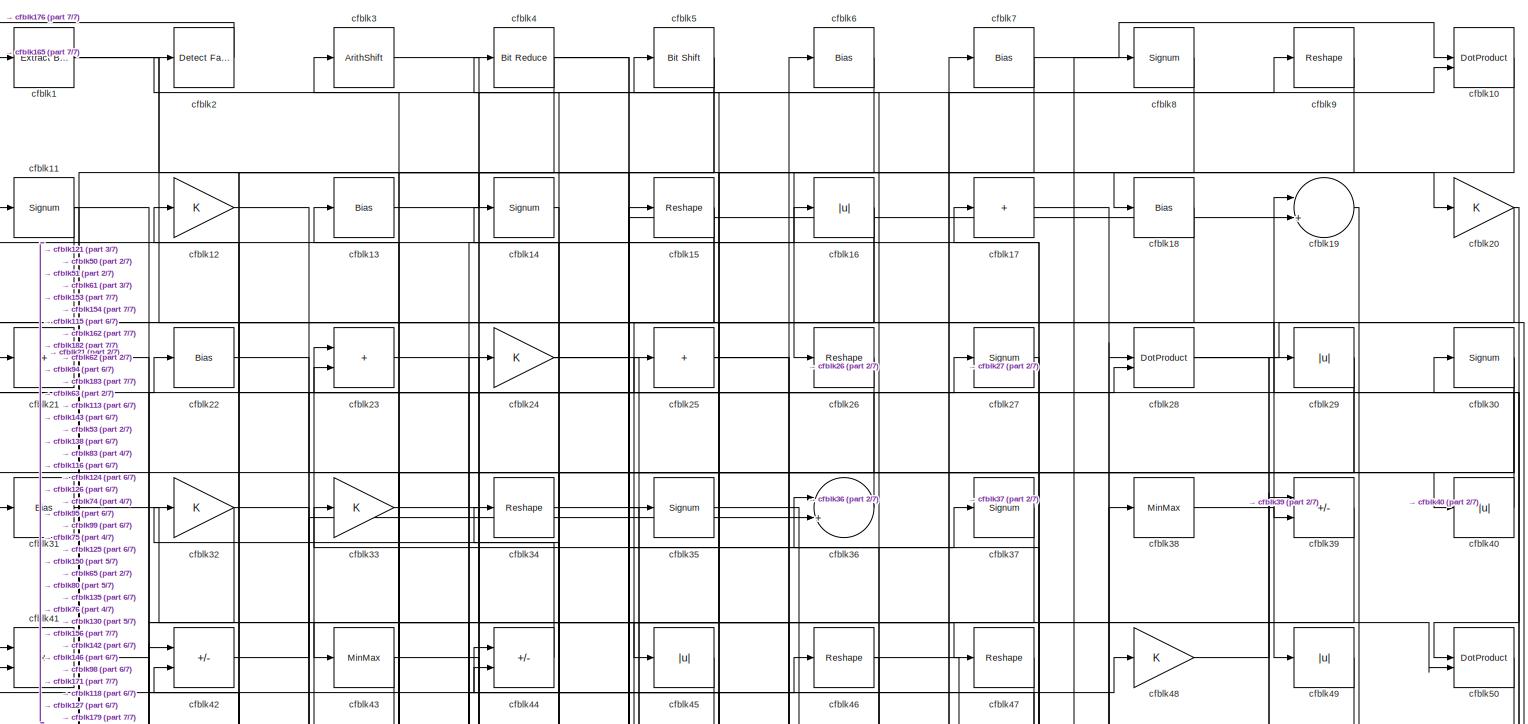
[diagram: root canvas - part 1/7, full width, top band]
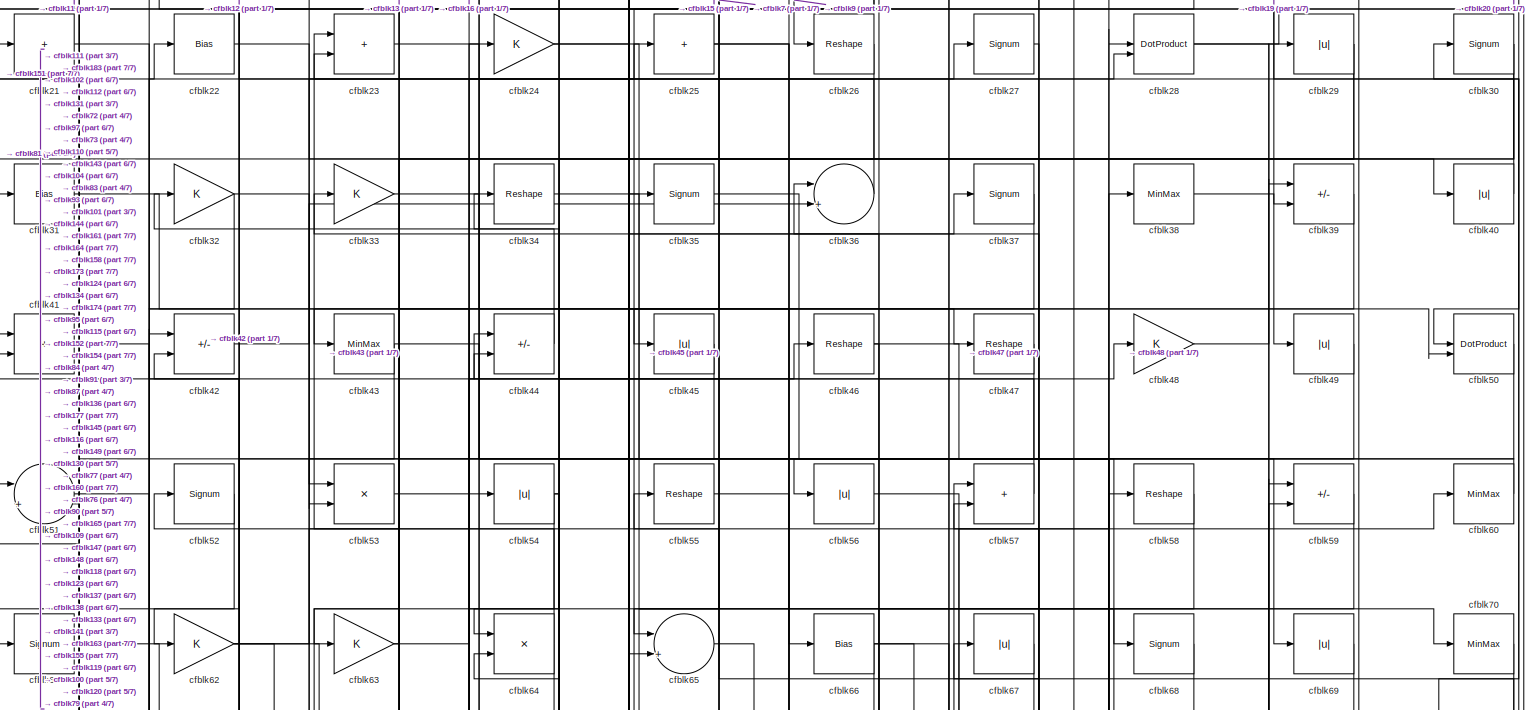
[diagram: root canvas - part 2/7, full width, top band]
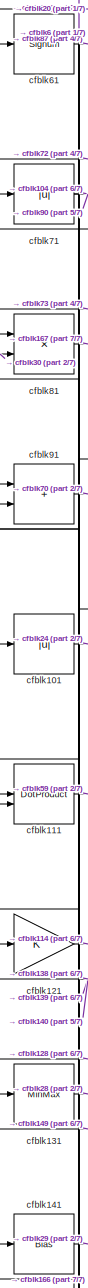
[diagram: root canvas - part 3/7, middle left region]
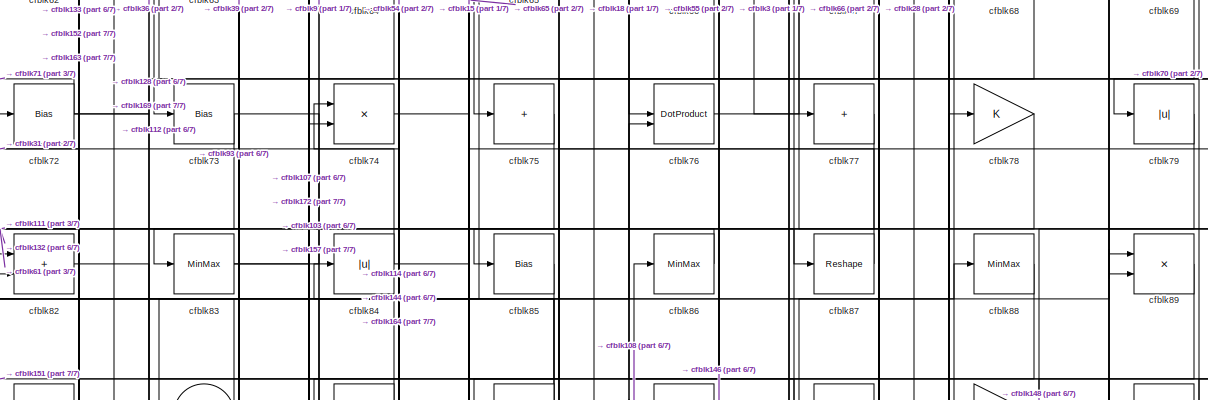
[diagram: root canvas - part 4/7, full width, middle band]
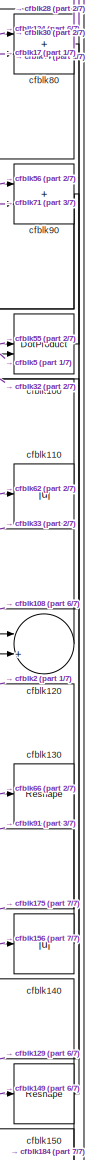
[diagram: root canvas - part 5/7, middle right region]
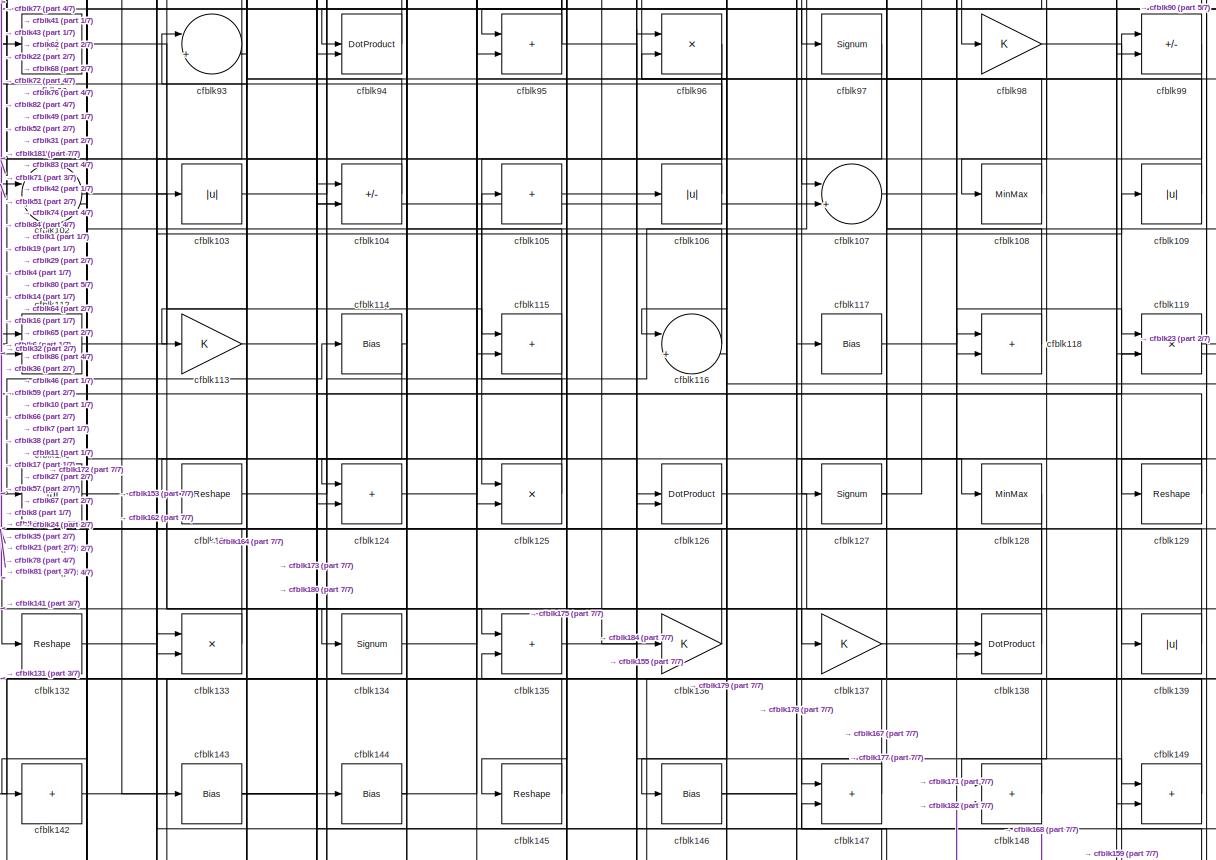
[diagram: root canvas - part 6/7, full width, middle band]
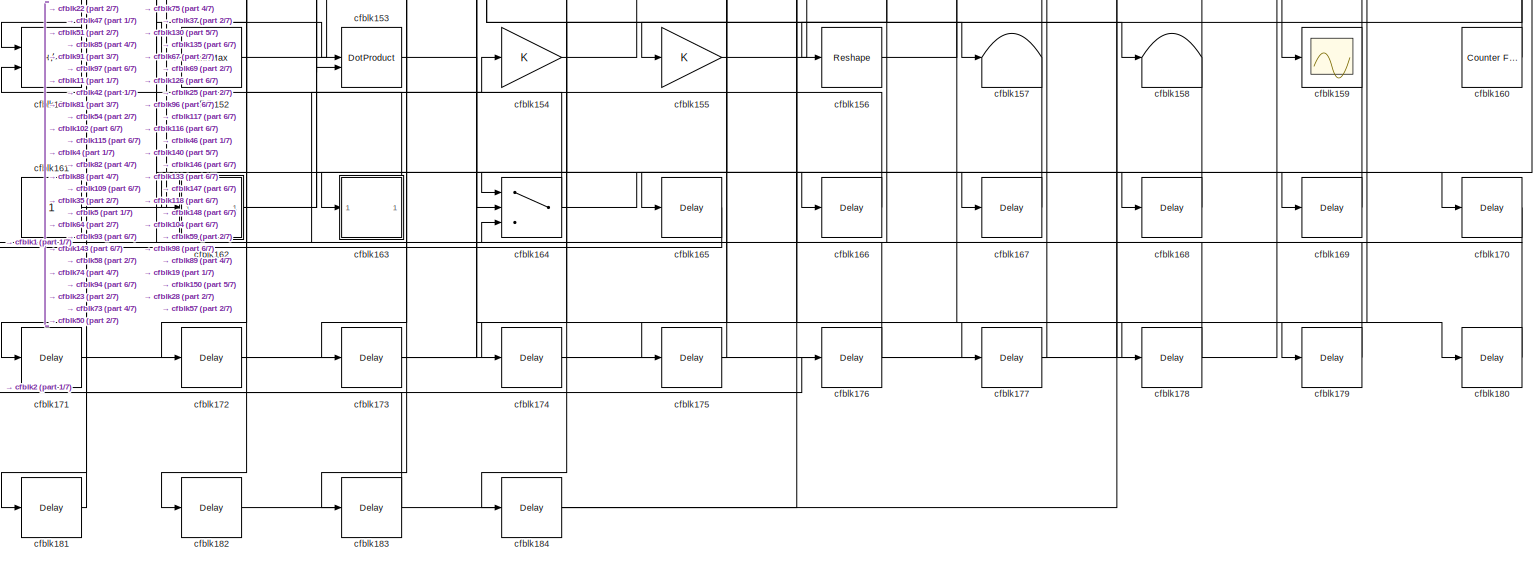
[diagram: root canvas - part 7/7, full width, bottom band]
MODEL slx_677499b3322e
KIND model
CONFIG AbsTol = auto
CONFIG EnableMultiTasking = off
CONFIG FixedStep = auto
CONFIG MaxStep = auto
CONFIG MinStep = auto
CONFIG RelTol = 1e-3
CONFIG SampleTimeConstraint = Unconstrained
CONFIG SolverName = VariableStepAuto
CONFIG StartTime = 0.0
CONFIG StopTime = 10.0
BLOCK [Reference] cfblk1  REF=simulink/Logic and Bit
Operations/Extract Bits
  LibrarySourceBlock = hdlsllib/Logic and Bit\nOperations/Extract Bits
  SourceBlock = simulink/Logic and Bit\nOperations/Extract Bits
  SourceType = Extract Bits
BLOCK [DotProduct] cfblk10
  OutDataTypeStr = Inherit: Inherit via internal rule
BLOCK [DotProduct] cfblk100
  OutDataTypeStr = Inherit: Inherit via internal rule
BLOCK [Abs] cfblk101
  SaturateOnIntegerOverflow = off
BLOCK [Sum] cfblk102
  Inputs = |++
BLOCK [Abs] cfblk103
  SaturateOnIntegerOverflow = off
BLOCK [Sum] cfblk104
  IconShape = rectangular
  Inputs = +-
BLOCK [Sum] cfblk105
  IconShape = rectangular
  Inputs = +
BLOCK [Abs] cfblk106
  SaturateOnIntegerOverflow = off
BLOCK [Sum] cfblk107
  Inputs = |++
BLOCK [MinMax] cfblk108
BLOCK [Abs] cfblk109
  SaturateOnIntegerOverflow = off
BLOCK [Signum] cfblk11
BLOCK [Abs] cfblk110
  SaturateOnIntegerOverflow = off
BLOCK [DotProduct] cfblk111
  OutDataTypeStr = Inherit: Inherit via internal rule
BLOCK [Sum] cfblk112
  IconShape = rectangular
BLOCK [Gain] cfblk113
BLOCK [Bias] cfblk114
  Bias = 0.0
  SaturateOnIntegerOverflow = off
BLOCK [Sum] cfblk115
  IconShape = rectangular
BLOCK [Sum] cfblk116
  Inputs = |++
BLOCK [Bias] cfblk117
  Bias = 0.0
  SaturateOnIntegerOverflow = off
BLOCK [Sum] cfblk118
  IconShape = rectangular
BLOCK [Product] cfblk119
  Inputs = */
  RndMeth = Zero
  SaturateOnIntegerOverflow = on
BLOCK [Gain] cfblk12
BLOCK [Sum] cfblk120
  Inputs = |++
BLOCK [Gain] cfblk121
BLOCK [Abs] cfblk122
  SaturateOnIntegerOverflow = off
BLOCK [Reshape] cfblk123
BLOCK [Sum] cfblk124
  IconShape = rectangular
BLOCK [Product] cfblk125
  Inputs = */
  RndMeth = Zero
  SaturateOnIntegerOverflow = on
BLOCK [DotProduct] cfblk126
  OutDataTypeStr = Inherit: Inherit via internal rule
BLOCK [Signum] cfblk127
BLOCK [MinMax] cfblk128
BLOCK [Reshape] cfblk129
BLOCK [Bias] cfblk13
  Bias = 0.0
  SaturateOnIntegerOverflow = off
BLOCK [Reshape] cfblk130
BLOCK [MinMax] cfblk131
BLOCK [Reshape] cfblk132
BLOCK [Product] cfblk133
  Inputs = */
  RndMeth = Zero
  SaturateOnIntegerOverflow = on
BLOCK [Signum] cfblk134
BLOCK [Sum] cfblk135
  IconShape = rectangular
BLOCK [Gain] cfblk136
BLOCK [Gain] cfblk137
BLOCK [DotProduct] cfblk138
  OutDataTypeStr = Inherit: Inherit via internal rule
BLOCK [Abs] cfblk139
  SaturateOnIntegerOverflow = off
BLOCK [Signum] cfblk14
BLOCK [Abs] cfblk140
  SaturateOnIntegerOverflow = off
BLOCK [Bias] cfblk141
  Bias = 0.0
  SaturateOnIntegerOverflow = off
BLOCK [Sum] cfblk142
  IconShape = rectangular
  Inputs = +
BLOCK [Bias] cfblk143
  Bias = 0.0
  SaturateOnIntegerOverflow = off
BLOCK [Bias] cfblk144
  Bias = 0.0
  SaturateOnIntegerOverflow = off
BLOCK [Reshape] cfblk145
BLOCK [Bias] cfblk146
  Bias = 0.0
  SaturateOnIntegerOverflow = off
BLOCK [Sum] cfblk147
  IconShape = rectangular
BLOCK [Sum] cfblk148
  IconShape = rectangular
BLOCK [Sum] cfblk149
  IconShape = rectangular
BLOCK [Reshape] cfblk15
BLOCK [Reshape] cfblk150
BLOCK [Sum] cfblk151
  IconShape = rectangular
  Inputs = +-
BLOCK [MinMax] cfblk152
BLOCK [DotProduct] cfblk153
  OutDataTypeStr = Inherit: Inherit via internal rule
BLOCK [Gain] cfblk154
BLOCK [Gain] cfblk155
BLOCK [Reshape] cfblk156
BLOCK [Terminator] cfblk157
BLOCK [Terminator] cfblk158
BLOCK [Scope] cfblk159
  Floating = off
  NumInputPorts = 1
  ScopeSpecificationString = Simulink.scopes.TimeScopeBlockCfg('CurrentConfiguration', extmgr.ConfigurationSet(extmgr.Configuration('Core','General UI',true),extmgr.Configuration('Core','Source UI',true),extmgr.Configuration('Sources','WiredSimulink',true,'DataLoggingVariableName','ScopeData2','DataLoggingSaveFormat','Array','DataLoggingLimitDataPoints',true,'DataLoggingDecimation','1'),extmgr.Configuration('Visuals','Time Do...<+868ch>
BLOCK [Abs] cfblk16
  SaturateOnIntegerOverflow = off
BLOCK [Reference] cfblk160  REF=hdlsllib/Sources/Counter
Free-Running
  SourceBlock = hdlsllib/Sources/Counter\nFree-Running
  SourceType = Counter Free-Running
BLOCK [Constant] cfblk161
  SampleTime = -1
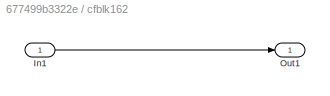
BLOCK [SubSystem] cfblk162
  LibrarySourceBlock = hdlsllib/Ports &\nSubsystems/Subsystem
BLOCK [Inport] cfblk162/In1
BLOCK [Outport] cfblk162/Out1
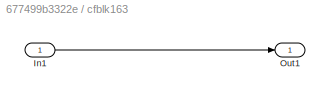
BLOCK [SubSystem] cfblk163
  LibrarySourceBlock = hdlsllib/Ports &\nSubsystems/Subsystem
BLOCK [Inport] cfblk163/In1
BLOCK [Outport] cfblk163/Out1
BLOCK [Switch] cfblk164
  InputSameDT = off
  SaturateOnIntegerOverflow = off
BLOCK [Delay] cfblk165
  InputPortMap = u0
  SampleTime = 1
BLOCK [Delay] cfblk166
  InputPortMap = u0
  SampleTime = 1
BLOCK [Delay] cfblk167
  InputPortMap = u0
  SampleTime = 1
BLOCK [Delay] cfblk168
  InputPortMap = u0
  SampleTime = 1
BLOCK [Delay] cfblk169
  InputPortMap = u0
  SampleTime = 1
BLOCK [Sum] cfblk17
  IconShape = rectangular
  Inputs = +
BLOCK [Delay] cfblk170
  InputPortMap = u0
  SampleTime = 1
BLOCK [Delay] cfblk171
  InputPortMap = u0
  SampleTime = 1
BLOCK [Delay] cfblk172
  InputPortMap = u0
  SampleTime = 1
BLOCK [Delay] cfblk173
  InputPortMap = u0
  SampleTime = 1
BLOCK [Delay] cfblk174
  InputPortMap = u0
  SampleTime = 1
BLOCK [Delay] cfblk175
  InputPortMap = u0
  SampleTime = 1
BLOCK [Delay] cfblk176
  InputPortMap = u0
  SampleTime = 1
BLOCK [Delay] cfblk177
  InputPortMap = u0
  SampleTime = 1
BLOCK [Delay] cfblk178
  InputPortMap = u0
  SampleTime = 1
BLOCK [Delay] cfblk179
  InputPortMap = u0
  SampleTime = 1
BLOCK [Bias] cfblk18
  Bias = 0.0
  SaturateOnIntegerOverflow = off
BLOCK [Delay] cfblk180
  InputPortMap = u0
  SampleTime = 1
BLOCK [Delay] cfblk181
  InputPortMap = u0
  SampleTime = 1
BLOCK [Delay] cfblk182
  InputPortMap = u0
  SampleTime = 1
BLOCK [Delay] cfblk183
  InputPortMap = u0
  SampleTime = 1
BLOCK [Delay] cfblk184
  InputPortMap = u0
  SampleTime = 1
BLOCK [Sum] cfblk19
  Inputs = |++
BLOCK [Reference] cfblk2  REF=hdlsllib/Logic and Bit
Operations/Detect Fall
Nonpositive
  SourceBlock = hdlsllib/Logic and Bit\nOperations/Detect Fall\nNonpositive
  SourceType = Detect Fall Nonpositive
BLOCK [Gain] cfblk20
BLOCK [Sum] cfblk21
  IconShape = rectangular
  Inputs = +
BLOCK [Bias] cfblk22
  Bias = 0.0
  SaturateOnIntegerOverflow = off
BLOCK [Sum] cfblk23
  IconShape = rectangular
BLOCK [Gain] cfblk24
BLOCK [Sum] cfblk25
  IconShape = rectangular
  Inputs = +
BLOCK [Reshape] cfblk26
BLOCK [Signum] cfblk27
BLOCK [DotProduct] cfblk28
  OutDataTypeStr = Inherit: Inherit via internal rule
BLOCK [Abs] cfblk29
  SaturateOnIntegerOverflow = off
BLOCK [ArithShift] cfblk3
  BitShiftNumber = 8
  InputPortMap = u0
BLOCK [Signum] cfblk30
BLOCK [Bias] cfblk31
  Bias = 0.0
  SaturateOnIntegerOverflow = off
BLOCK [Gain] cfblk32
BLOCK [Gain] cfblk33
BLOCK [Reshape] cfblk34
BLOCK [Signum] cfblk35
BLOCK [Sum] cfblk36
  Inputs = |++
BLOCK [Signum] cfblk37
BLOCK [MinMax] cfblk38
BLOCK [Sum] cfblk39
  IconShape = rectangular
  Inputs = +-
BLOCK [Reference] cfblk4  REF=hdlsllib/Logic and Bit
Operations/Bit Reduce
  SourceBlock = hdlsllib/Logic and Bit\nOperations/Bit Reduce
  SourceType = Bit Reduce
BLOCK [Abs] cfblk40
  SaturateOnIntegerOverflow = off
BLOCK [Sum] cfblk41
  IconShape = rectangular
BLOCK [Sum] cfblk42
  IconShape = rectangular
  Inputs = +-
BLOCK [MinMax] cfblk43
BLOCK [Sum] cfblk44
  IconShape = rectangular
  Inputs = +-
BLOCK [Abs] cfblk45
  SaturateOnIntegerOverflow = off
BLOCK [Reshape] cfblk46
BLOCK [Reshape] cfblk47
BLOCK [Gain] cfblk48
BLOCK [Abs] cfblk49
  SaturateOnIntegerOverflow = off
BLOCK [Reference] cfblk5  REF=hdlsllib/Logic and Bit
Operations/Bit Shift
  SourceBlock = hdlsllib/Logic and Bit\nOperations/Bit Shift
  SourceType = Bit Shift
BLOCK [DotProduct] cfblk50
  OutDataTypeStr = Inherit: Inherit via internal rule
BLOCK [Sum] cfblk51
  Inputs = |++
BLOCK [Signum] cfblk52
BLOCK [Product] cfblk53
  Inputs = */
  RndMeth = Zero
  SaturateOnIntegerOverflow = on
BLOCK [Abs] cfblk54
  SaturateOnIntegerOverflow = off
BLOCK [Reshape] cfblk55
BLOCK [Abs] cfblk56
  SaturateOnIntegerOverflow = off
BLOCK [Sum] cfblk57
  IconShape = rectangular
BLOCK [Reshape] cfblk58
BLOCK [Sum] cfblk59
  IconShape = rectangular
  Inputs = +-
BLOCK [Bias] cfblk6
  Bias = 0.0
  SaturateOnIntegerOverflow = off
BLOCK [MinMax] cfblk60
BLOCK [Signum] cfblk61
BLOCK [Gain] cfblk62
BLOCK [Gain] cfblk63
BLOCK [Product] cfblk64
  Inputs = */
  RndMeth = Zero
  SaturateOnIntegerOverflow = on
BLOCK [Sum] cfblk65
  Inputs = |++
BLOCK [Bias] cfblk66
  Bias = 0.0
  SaturateOnIntegerOverflow = off
BLOCK [Abs] cfblk67
  SaturateOnIntegerOverflow = off
BLOCK [Signum] cfblk68
BLOCK [Abs] cfblk69
  SaturateOnIntegerOverflow = off
BLOCK [Bias] cfblk7
  Bias = 0.0
  SaturateOnIntegerOverflow = off
BLOCK [MinMax] cfblk70
BLOCK [Abs] cfblk71
  SaturateOnIntegerOverflow = off
BLOCK [Bias] cfblk72
  Bias = 0.0
  SaturateOnIntegerOverflow = off
BLOCK [Bias] cfblk73
  Bias = 0.0
  SaturateOnIntegerOverflow = off
BLOCK [Product] cfblk74
  Inputs = */
  RndMeth = Zero
  SaturateOnIntegerOverflow = on
BLOCK [Sum] cfblk75
  IconShape = rectangular
  Inputs = +
BLOCK [DotProduct] cfblk76
  OutDataTypeStr = Inherit: Inherit via internal rule
BLOCK [Sum] cfblk77
  IconShape = rectangular
  Inputs = +
BLOCK [Gain] cfblk78
BLOCK [Abs] cfblk79
  SaturateOnIntegerOverflow = off
BLOCK [Signum] cfblk8
BLOCK [Sum] cfblk80
  IconShape = rectangular
BLOCK [Product] cfblk81
  Inputs = */
  RndMeth = Zero
  SaturateOnIntegerOverflow = on
BLOCK [Sum] cfblk82
  IconShape = rectangular
BLOCK [MinMax] cfblk83
BLOCK [Abs] cfblk84
  SaturateOnIntegerOverflow = off
BLOCK [Bias] cfblk85
  Bias = 0.0
  SaturateOnIntegerOverflow = off
BLOCK [MinMax] cfblk86
BLOCK [Reshape] cfblk87
BLOCK [MinMax] cfblk88
BLOCK [Product] cfblk89
  Inputs = */
  RndMeth = Zero
  SaturateOnIntegerOverflow = on
BLOCK [Reshape] cfblk9
BLOCK [Sum] cfblk90
  IconShape = rectangular
BLOCK [Sum] cfblk91
  IconShape = rectangular
BLOCK [Abs] cfblk92
  SaturateOnIntegerOverflow = off
BLOCK [Sum] cfblk93
  Inputs = |++
BLOCK [DotProduct] cfblk94
  OutDataTypeStr = Inherit: Inherit via internal rule
BLOCK [Sum] cfblk95
  IconShape = rectangular
BLOCK [Product] cfblk96
  Inputs = */
  RndMeth = Zero
  SaturateOnIntegerOverflow = on
BLOCK [Signum] cfblk97
BLOCK [Gain] cfblk98
BLOCK [Sum] cfblk99
  IconShape = rectangular
  Inputs = +-
LINE cfblk100:1 -> cfblk30:1
LINE cfblk101:1 -> cfblk24:1
LINE cfblk102:1 -> cfblk135:1
LINE cfblk103:1 -> cfblk88:1
LINE cfblk104:1 -> cfblk52:1
LINE cfblk105:1 -> cfblk106:1
LINE cfblk106:1 -> cfblk92:1
LINE cfblk107:1 -> cfblk78:1
LINE cfblk108:1 -> cfblk86:1
LINE cfblk109:1 -> cfblk67:1
LINE cfblk10:1 -> cfblk18:1
LINE cfblk110:1 -> cfblk32:1
LINE cfblk111:1 -> cfblk59:2
LINE cfblk112:1 -> cfblk76:2
LINE cfblk113:1 -> cfblk46:1
NET cfblk114:1 -> cfblk124:2, cfblk84:1
NET cfblk115:1 -> cfblk172:1, cfblk41:1
LINE cfblk116:1 -> cfblk4:1
LINE cfblk117:1 -> cfblk119:1
LINE cfblk118:1 -> cfblk11:1
LINE cfblk119:1 -> cfblk23:1
NET cfblk11:1 -> cfblk153:1, cfblk154:1, cfblk51:2
LINE cfblk120:1 -> cfblk33:1
LINE cfblk121:1 -> cfblk114:1
LINE cfblk122:1 -> cfblk137:1
LINE cfblk123:1 -> cfblk38:1
LINE cfblk124:1 -> cfblk19:2
LINE cfblk125:1 -> cfblk105:1
LINE cfblk126:1 -> cfblk139:1
NET cfblk127:1 -> cfblk17:1, cfblk8:1
LINE cfblk128:1 -> cfblk141:1
NET cfblk129:1 -> cfblk112:1, cfblk127:1
LINE cfblk12:1 -> cfblk40:1
NET cfblk130:1 -> cfblk175:1, cfblk2:1
LINE cfblk131:1 -> cfblk28:2
LINE cfblk132:1 -> cfblk103:1
LINE cfblk133:1 -> cfblk72:1
LINE cfblk134:1 -> cfblk80:1
LINE cfblk135:1 -> cfblk6:1
LINE cfblk136:1 -> cfblk21:1
LINE cfblk137:1 -> cfblk58:1
LINE cfblk138:1 -> cfblk81:1
LINE cfblk139:1 -> cfblk101:1
LINE cfblk13:1 -> cfblk20:1
LINE cfblk140:1 -> cfblk91:1
LINE cfblk141:1 -> cfblk29:1
LINE cfblk142:1 -> cfblk7:1
NET cfblk143:1 -> cfblk119:2, cfblk180:1, cfblk48:1
NET cfblk144:1 -> cfblk74:1, cfblk99:1
LINE cfblk145:1 -> cfblk122:1
NET cfblk146:1 -> cfblk10:2, cfblk178:1
LINE cfblk147:1 -> cfblk96:2
LINE cfblk148:1 -> cfblk57:2
NET cfblk149:1 -> cfblk131:1, cfblk36:1
LINE cfblk14:1 -> cfblk94:1
NET cfblk150:1 -> cfblk100:2, cfblk184:1, cfblk5:1
LINE cfblk151:1 -> cfblk22:1
LINE cfblk152:1 -> cfblk35:1
LINE cfblk153:1 -> cfblk170:1
LINE cfblk154:1 -> cfblk37:1
LINE cfblk155:1 -> cfblk117:1
LINE cfblk156:1 -> cfblk140:1
NET cfblk15:1 -> cfblk41:2, cfblk62:1
LINE cfblk160:1 -> cfblk57:1
LINE cfblk161:1 -> cfblk54:1
LINE cfblk162/In1:1 -> cfblk162/Out1:1
NET cfblk162:1 -> cfblk109:1, cfblk166:1
LINE cfblk163/In1:1 -> cfblk163/Out1:1
LINE cfblk163:1 -> cfblk82:1
NET cfblk164:1 -> cfblk168:1, cfblk93:1
LINE cfblk165:1 -> cfblk1:1
LINE cfblk166:1 -> cfblk91:2
LINE cfblk167:1 -> cfblk133:1
LINE cfblk168:1 -> cfblk104:1
LINE cfblk169:1 -> cfblk89:1
NET cfblk16:1 -> cfblk125:2, cfblk95:1
LINE cfblk170:1 -> cfblk164:3
LINE cfblk171:1 -> cfblk148:2
LINE cfblk172:1 -> cfblk74:2
LINE cfblk173:1 -> cfblk94:2
LINE cfblk174:1 -> cfblk59:1
LINE cfblk175:1 -> cfblk135:2
LINE cfblk176:1 -> cfblk42:1
LINE cfblk177:1 -> cfblk147:2
LINE cfblk178:1 -> cfblk96:1
LINE cfblk179:1 -> cfblk116:2
LINE cfblk17:1 -> cfblk80:2
LINE cfblk180:1 -> cfblk102:2
LINE cfblk181:1 -> cfblk151:2
LINE cfblk182:1 -> cfblk118:1
LINE cfblk183:1 -> cfblk51:1
LINE cfblk184:1 -> cfblk126:1
LINE cfblk18:1 -> cfblk75:1
LINE cfblk19:1 -> cfblk179:1
NET cfblk1:1 -> cfblk49:1, cfblk95:2
NET cfblk20:1 -> cfblk50:1, cfblk61:1
LINE cfblk21:1 -> cfblk47:1
LINE cfblk22:1 -> cfblk97:1
LINE cfblk23:1 -> cfblk158:1
NET cfblk24:1 -> cfblk118:2, cfblk50:2
NET cfblk25:1 -> cfblk177:1, cfblk66:1
LINE cfblk26:1 -> cfblk63:1
LINE cfblk27:1 -> cfblk147:1
NET cfblk28:1 -> cfblk120:2, cfblk163:1
NET cfblk29:1 -> cfblk115:2, cfblk93:2
LINE cfblk2:1 -> cfblk176:1
NET cfblk30:1 -> cfblk64:1, cfblk81:2
LINE cfblk31:1 -> cfblk144:1
NET cfblk32:1 -> cfblk112:2, cfblk53:1
LINE cfblk33:1 -> cfblk69:1
LINE cfblk34:1 -> cfblk68:1
LINE cfblk35:1 -> cfblk138:1
LINE cfblk36:1 -> cfblk12:1
LINE cfblk37:1 -> cfblk43:1
LINE cfblk38:1 -> cfblk39:2
LINE cfblk39:1 -> cfblk83:1
LINE cfblk3:1 -> cfblk76:1
LINE cfblk40:1 -> cfblk19:1
LINE cfblk41:1 -> cfblk44:2
LINE cfblk42:1 -> cfblk27:1
NET cfblk43:1 -> cfblk138:2, cfblk142:1
LINE cfblk44:1 -> cfblk3:1
LINE cfblk45:1 -> cfblk53:2
NET cfblk46:1 -> cfblk156:1, cfblk98:1
LINE cfblk47:1 -> cfblk171:1
LINE cfblk48:1 -> cfblk39:1
LINE cfblk49:1 -> cfblk113:1
NET cfblk4:1 -> cfblk126:2, cfblk162:1, cfblk99:2
LINE cfblk50:1 -> cfblk174:1
LINE cfblk51:1 -> cfblk102:1
LINE cfblk52:1 -> cfblk111:1
LINE cfblk53:1 -> cfblk16:1
NET cfblk54:1 -> cfblk124:1, cfblk134:1, cfblk73:1
LINE cfblk55:1 -> cfblk100:1
LINE cfblk56:1 -> cfblk90:1
LINE cfblk57:1 -> cfblk34:1
LINE cfblk58:1 -> cfblk164:2
LINE cfblk59:1 -> cfblk116:1
NET cfblk5:1 -> cfblk182:1, cfblk183:1
LINE cfblk60:1 -> cfblk56:1
LINE cfblk61:1 -> cfblk87:1
NET cfblk62:1 -> cfblk110:1, cfblk143:1, cfblk60:1
NET cfblk63:1 -> cfblk13:1, cfblk25:1
NET cfblk64:1 -> cfblk173:1, cfblk23:2
LINE cfblk65:1 -> cfblk136:1
NET cfblk66:1 -> cfblk130:1, cfblk145:1, cfblk77:1
LINE cfblk67:1 -> cfblk165:1
LINE cfblk68:1 -> cfblk133:2
LINE cfblk69:1 -> cfblk155:1
LINE cfblk6:1 -> cfblk121:1
LINE cfblk70:1 -> cfblk79:1
NET cfblk71:1 -> cfblk104:2, cfblk90:2
NET cfblk72:1 -> cfblk128:1, cfblk36:2, cfblk71:1
NET cfblk73:1 -> cfblk111:2, cfblk157:1
LINE cfblk74:1 -> cfblk15:1
LINE cfblk75:1 -> cfblk164:1
LINE cfblk76:1 -> cfblk28:1
LINE cfblk77:1 -> cfblk132:1
LINE cfblk78:1 -> cfblk146:1
LINE cfblk79:1 -> cfblk89:2
NET cfblk7:1 -> cfblk10:1, cfblk65:1
NET cfblk80:1 -> cfblk108:1, cfblk120:1, cfblk44:1
LINE cfblk81:1 -> cfblk167:1
LINE cfblk82:1 -> cfblk169:1
NET cfblk83:1 -> cfblk107:2, cfblk9:1
NET cfblk84:1 -> cfblk31:1, cfblk65:2
LINE cfblk85:1 -> cfblk151:1
LINE cfblk86:1 -> cfblk85:1
LINE cfblk87:1 -> cfblk55:1
LINE cfblk88:1 -> cfblk152:1
LINE cfblk89:1 -> cfblk148:1
LINE cfblk8:1 -> cfblk45:1
NET cfblk90:1 -> cfblk129:1, cfblk149:2, cfblk150:1
LINE cfblk91:1 -> cfblk70:1
LINE cfblk92:1 -> cfblk115:1
NET cfblk93:1 -> cfblk153:2, cfblk82:2
LINE cfblk94:1 -> cfblk42:2
NET cfblk95:1 -> cfblk149:1, cfblk14:1, cfblk64:2
NET cfblk96:1 -> cfblk123:1, cfblk125:1
LINE cfblk97:1 -> cfblk181:1
LINE cfblk98:1 -> cfblk159:1
LINE cfblk99:1 -> cfblk107:1
LINE cfblk9:1 -> cfblk26:1
note: NET lines group one-source signal fan-out (src -> all destinations, sorted); 1:1 wires keep LINE
